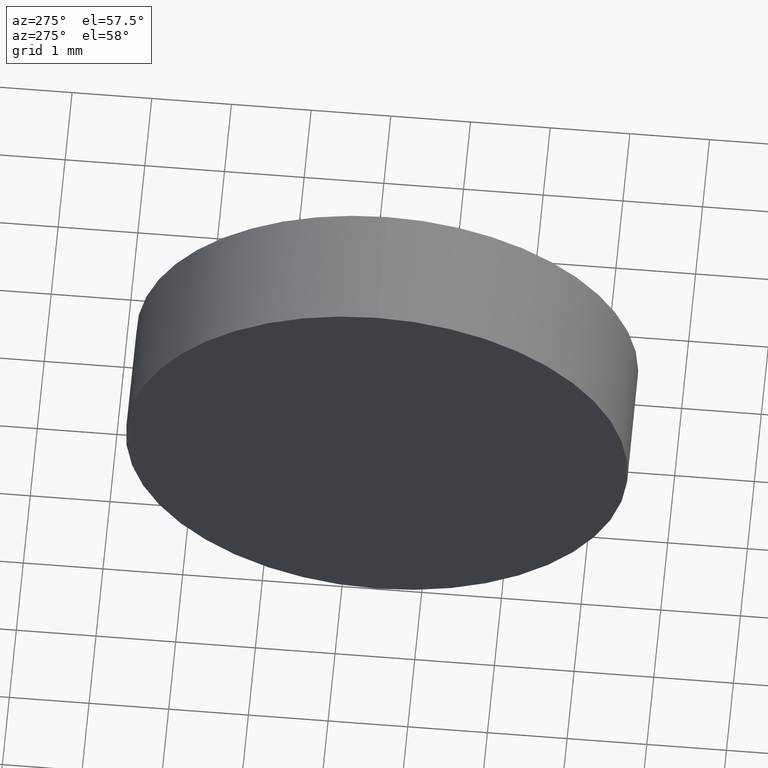
[diagram: clean part render]
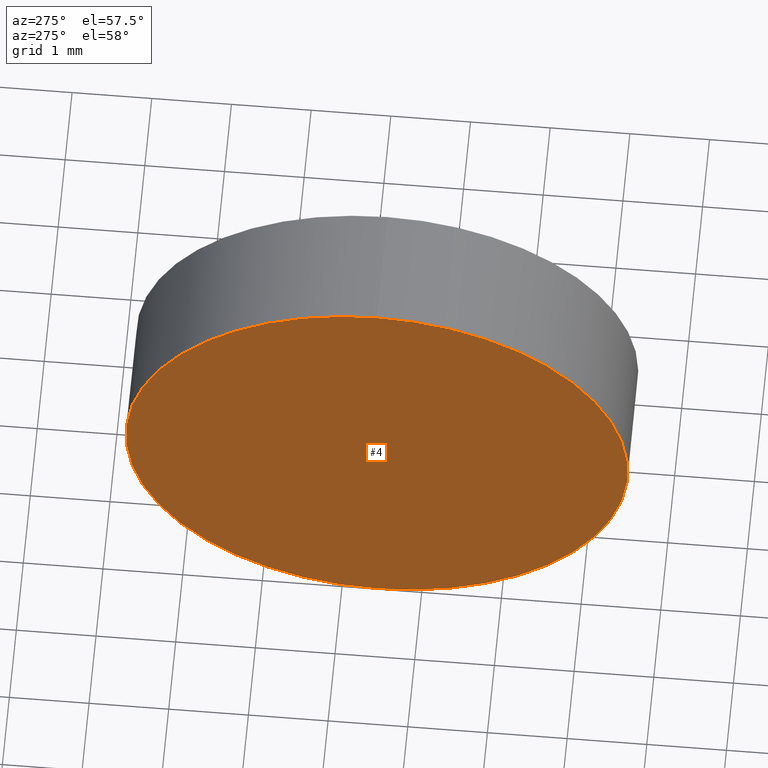
[diagram: same view with one face highlighted and labeled with its STEP entity id]
A machine part, auxiliary view. The second image highlights one B-rep face of the part: STEP entity #4.
In plain terms, the highlighted planar face has unit normal (1, 0, 0).
Its self-contained STEP definition (entity closure, byte-faithful):
#4 = ADVANCED_FACE ( 'NONE', ( #28 ), #65, .F. ) ;
#8 = CARTESIAN_POINT ( 'NONE',  ( 437.9198361449435900, 10.55632833834806700, -3.149999999999999900 ) ) ;
#19 = CARTESIAN_POINT ( 'NONE',  ( 437.9198361449435900, 10.55632833834806700, 0.0000000000000000000 ) ) ;
#20 = CARTESIAN_POINT ( 'NONE',  ( 437.9198361449435900, 10.55632833834806700, 3.149999999999999900 ) ) ;
#28 = FACE_OUTER_BOUND ( 'NONE', #130, .T. ) ;
#40 = DIRECTION ( 'NONE',  ( 0.0000000000000000000, 0.0000000000000000000, 1.000000000000000000 ) ) ;
#41 = VERTEX_POINT ( 'NONE', #8 ) ;
#47 = ORIENTED_EDGE ( 'NONE', *, *, #91, .T. ) ;
#51 = DIRECTION ( 'NONE',  ( 1.000000000000000000, 0.0000000000000000000, 0.0000000000000000000 ) ) ;
#65 = PLANE ( 'NONE',  #152 ) ;
#67 = AXIS2_PLACEMENT_3D ( 'NONE', #105, #68, #133 ) ;
#68 = DIRECTION ( 'NONE',  ( -1.000000000000000000, -0.0000000000000000000, -0.0000000000000000000 ) ) ;
#75 = VERTEX_POINT ( 'NONE', #20 ) ;
#77 = CIRCLE ( 'NONE', #86, 3.149999999999999900 ) ;
#86 = AXIS2_PLACEMENT_3D ( 'NONE', #19, #124, #40 ) ;
#91 = EDGE_CURVE ( 'NONE', #41, #75, #138, .T. ) ;
#105 = CARTESIAN_POINT ( 'NONE',  ( 437.9198361449435900, 10.55632833834806700, 0.0000000000000000000 ) ) ;
#118 = DIRECTION ( 'NONE',  ( 0.0000000000000000000, 0.0000000000000000000, -1.000000000000000000 ) ) ;
#124 = DIRECTION ( 'NONE',  ( -1.000000000000000000, -0.0000000000000000000, -0.0000000000000000000 ) ) ;
#130 = EDGE_LOOP ( 'NONE', ( #173, #47 ) ) ;
#133 = DIRECTION ( 'NONE',  ( 0.0000000000000000000, 0.0000000000000000000, 1.000000000000000000 ) ) ;
#138 = CIRCLE ( 'NONE', #67, 3.149999999999999900 ) ;
#152 = AXIS2_PLACEMENT_3D ( 'NONE', #158, #51, #118 ) ;
#158 = CARTESIAN_POINT ( 'NONE',  ( 437.9198361449435900, 10.55632833834806700, 0.0000000000000000000 ) ) ;
#173 = ORIENTED_EDGE ( 'NONE', *, *, #174, .T. ) ;
#174 = EDGE_CURVE ( 'NONE', #75, #41, #77, .T. ) ;